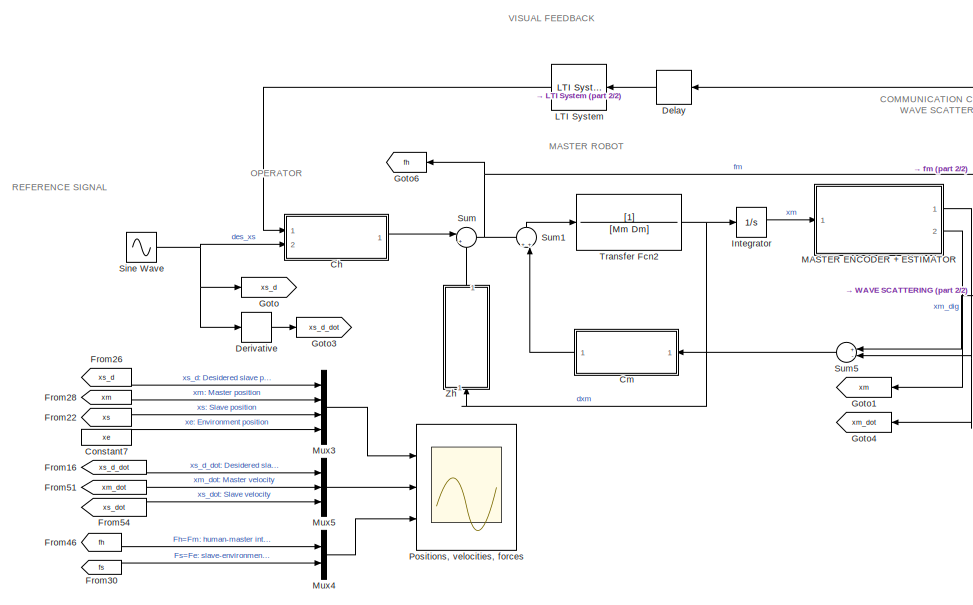
[diagram: root canvas - part 1/2, left side, full height]
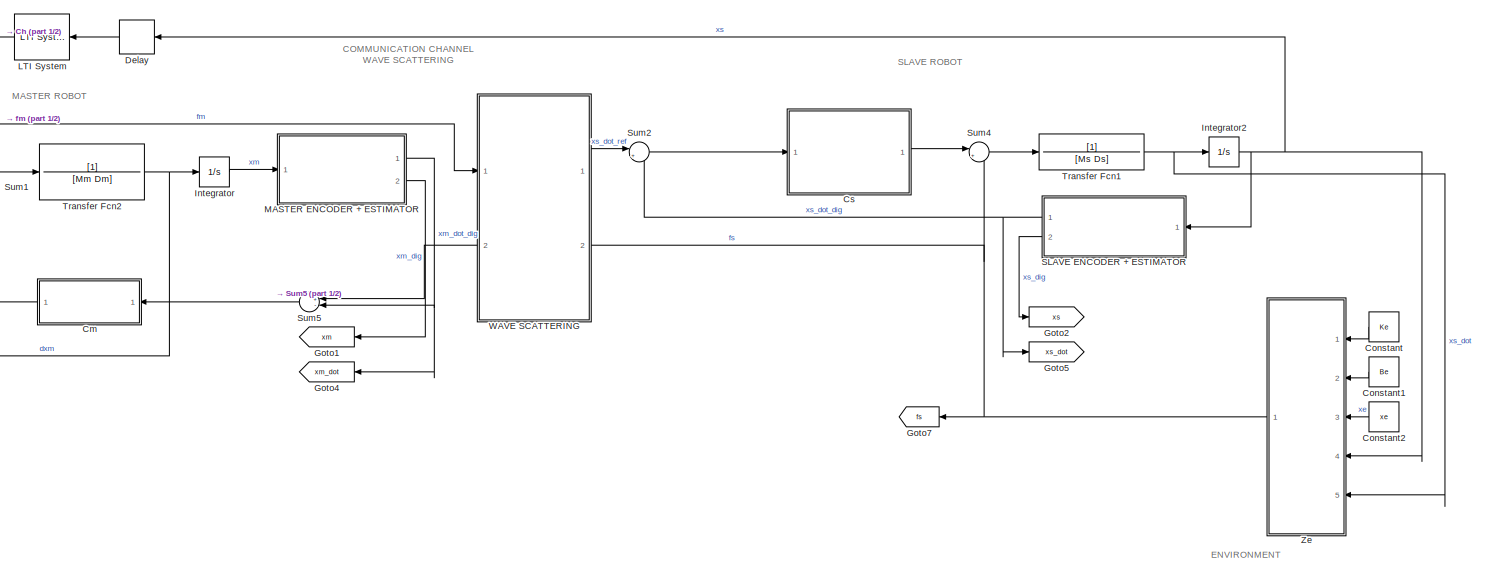
[diagram: root canvas - part 2/2, most of the canvas]
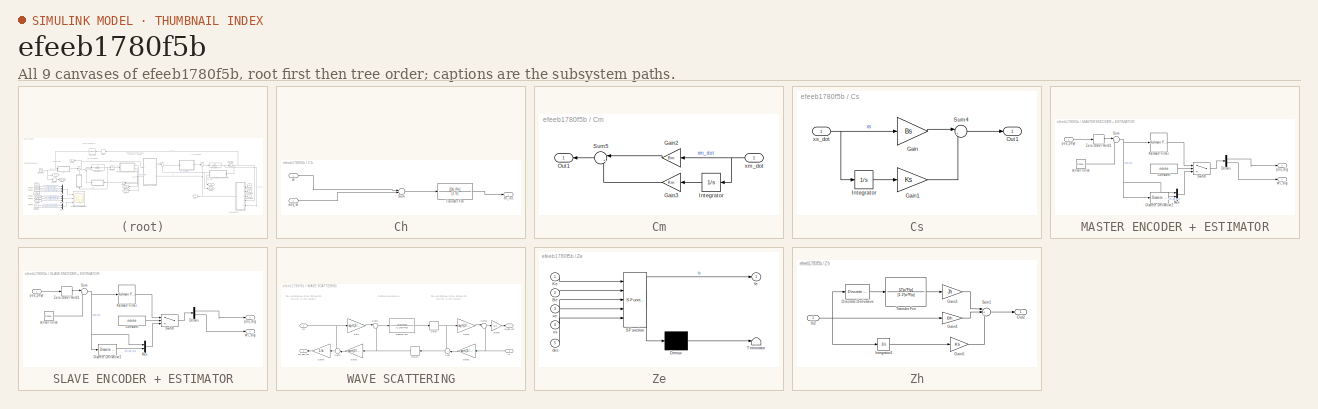
[diagram: thumbnail index - all 9 canvases of the model, root first then tree order]
MODEL slx_efeeb1780f5b
KIND model
CONFIG AbsTol = auto
CONFIG EnableMultiTasking = off
CONFIG FixedStep = auto
CONFIG MaxStep = auto
CONFIG MinStep = auto
CONFIG RelTol = 1e-3
CONFIG SampleTimeConstraint = Unconstrained
CONFIG SolverName = VariableStepAuto
CONFIG StartTime = 0.0
CONFIG StopTime = 10
BLOCK [SubSystem] Ch
  Ports = [2, 1]
  RequestExecContextInheritance = off
BLOCK [Sum] Ch/Sum
  Inputs = |-+
  Ports = [2, 1]
BLOCK [TransferFcn] Ch/Transfer Fcn
  Denominator = [1 0]
  Numerator = [Dh Ph]
BLOCK [Inport] Ch/des_xs
  Port = 2
BLOCK [Outport] Ch/fh_int
BLOCK [Inport] Ch/xs
BLOCK [SubSystem] Cm
  Ports = [1, 1]
  RequestExecContextInheritance = off
BLOCK [Gain] Cm/Gain2
  Gain = Bm
BLOCK [Gain] Cm/Gain3
  Gain = Km
BLOCK [Integrator] Cm/Integrator
  Ports = [1, 1]
BLOCK [Outport] Cm/Out1
BLOCK [Sum] Cm/Sum5
  Inputs = |++
  Ports = [2, 1]
BLOCK [Inport] Cm/xm_dot
BLOCK [Constant] Constant
  NameLocation = top
  Value = Ke
BLOCK [Constant] Constant1
  NameLocation = top
  Value = Be
BLOCK [Constant] Constant2
  NameLocation = top
  Value = xe
BLOCK [Constant] Constant7
  Value = xe
BLOCK [SubSystem] Cs
  Ports = [1, 1]
  RequestExecContextInheritance = off
BLOCK [Gain] Cs/Gain
  Gain = Bs
BLOCK [Gain] Cs/Gain1
  Gain = Ks
BLOCK [Integrator] Cs/Integrator
  Ports = [1, 1]
BLOCK [Outport] Cs/Out1
BLOCK [Sum] Cs/Sum4
  Inputs = |++
  Ports = [2, 1]
BLOCK [Inport] Cs/xs_dot
BLOCK [Delay] Delay
  DelayLength = d
  InputPortMap = u0
  Ports = [1, 1]
BLOCK [Derivative] Derivative
BLOCK [From] From16
  GotoTag = xs_d_dot
BLOCK [From] From22
  GotoTag = xs
BLOCK [From] From26
  GotoTag = xs_d
BLOCK [From] From28
  GotoTag = xm
BLOCK [From] From30
  GotoTag = fs
BLOCK [From] From46
  GotoTag = fh
BLOCK [From] From51
  GotoTag = xm_dot
BLOCK [From] From54
  GotoTag = xs_dot
BLOCK [Goto] Goto
  GotoTag = xs_d
BLOCK [Goto] Goto1
  GotoTag = xm
BLOCK [Goto] Goto2
  GotoTag = xs
BLOCK [Goto] Goto3
  GotoTag = xs_d_dot
BLOCK [Goto] Goto4
  GotoTag = xm_dot
BLOCK [Goto] Goto5
  GotoTag = xs_dot
BLOCK [Goto] Goto6
  GotoTag = fh
BLOCK [Goto] Goto7
  GotoTag = fs
BLOCK [Integrator] Integrator
  Ports = [1, 1]
BLOCK [Integrator] Integrator2
  Ports = [1, 1]
BLOCK [Reference] LTI System  REF=cstblocks/LTI System
  Ports = [1, 1]
  SourceBlock = cstblocks/LTI System
  SourceProductBaseCode = CT
  SourceType = LTI Block
BLOCK [SubSystem] MASTER ENCODER + ESTIMATOR
  Ports = [1, 2]
  RequestExecContextInheritance = off
BLOCK [Constant] MASTER ENCODER + ESTIMATOR/Constant
  Value = noise
BLOCK [Demux] MASTER ENCODER + ESTIMATOR/Demux
  Outputs = 2
  Ports = [1, 2]
BLOCK [Reference] MASTER ENCODER + ESTIMATOR/Discrete Derivative2  REF=simulink/Discrete/Discrete Derivative
  Ports = [1, 1]
  SourceBlock = simulink/Discrete/Discrete Derivative
  SourceProductBaseCode = SL
  SourceType = Discrete Derivative
BLOCK [Reference] MASTER ENCODER + ESTIMATOR/Kalman Filter  REF=ctrlSharedLib/Kalman Filter
  Ports = [1, 1]
  SourceBlock = ctrlSharedLib/Kalman Filter
  SourceProductBaseCode = CT,ID
  SourceType = ctrlKalmanFilter
BLOCK [Mux] MASTER ENCODER + ESTIMATOR/Mux
  DisplayOption = bar
  Inputs = 2
  Ports = [2, 1]
BLOCK [Sum] MASTER ENCODER + ESTIMATOR/Sum
  Inputs = |++
  Ports = [2, 1]
BLOCK [Switch] MASTER ENCODER + ESTIMATOR/Switch
  Criteria = u2 > Threshold
  InputSameDT = off
  SaturateOnIntegerOverflow = off
BLOCK [ZeroOrderHold] MASTER ENCODER + ESTIMATOR/Zero-Order Hold1
  SampleTime = Ts
BLOCK [Outport] MASTER ENCODER + ESTIMATOR/pos_dig
  Port = 2
BLOCK [Inport] MASTER ENCODER + ESTIMATOR/pos_phys
BLOCK [RandomNumber] MASTER ENCODER + ESTIMATOR/sensor noise
  NameLocation = top
  SampleTime = Ts
  Variance = noise
BLOCK [Outport] MASTER ENCODER + ESTIMATOR/vel_dig
BLOCK [Mux] Mux3
  DisplayOption = bar
  Ports = [4, 1]
BLOCK [Mux] Mux4
  DisplayOption = bar
  Inputs = 2
  Ports = [2, 1]
BLOCK [Mux] Mux5
  DisplayOption = bar
  Inputs = 3
  Ports = [3, 1]
BLOCK [Scope] Positions, velocities, forces
  Floating = off
  NumInputPorts = 3
  Ports = [3]
  ScopeSpecificationString = Simulink.scopes.TimeScopeBlockCfg('CurrentConfiguration', extmgr.ConfigurationSet(extmgr.Configuration('Core','General UI',true),extmgr.Configuration('Core','Source UI',true),extmgr.Configuration('Sources','WiredSimulink',true,'DataLogging',true,'SampleTime','Ts'),extmgr.Configuration('Visuals','Time Domain',true,'SerializedDisplays',{struct('MinYLimReal','-1.35516','MaxYLimReal','1.81724','YLabel...<+3672ch>
BLOCK [SubSystem] SLAVE ENCODER + ESTIMATOR
  Ports = [1, 2]
  RequestExecContextInheritance = off
BLOCK [Constant] SLAVE ENCODER + ESTIMATOR/Constant
  Value = noise
BLOCK [Demux] SLAVE ENCODER + ESTIMATOR/Demux
  Outputs = 2
  Ports = [1, 2]
BLOCK [Reference] SLAVE ENCODER + ESTIMATOR/Discrete Derivative2  REF=simulink/Discrete/Discrete Derivative
  Ports = [1, 1]
  SourceBlock = simulink/Discrete/Discrete Derivative
  SourceProductBaseCode = SL
  SourceType = Discrete Derivative
BLOCK [Reference] SLAVE ENCODER + ESTIMATOR/Kalman Filter  REF=ctrlSharedLib/Kalman Filter
  Ports = [1, 1]
  SourceBlock = ctrlSharedLib/Kalman Filter
  SourceProductBaseCode = CT,ID
  SourceType = ctrlKalmanFilter
BLOCK [Mux] SLAVE ENCODER + ESTIMATOR/Mux
  DisplayOption = bar
  Inputs = 2
  Ports = [2, 1]
BLOCK [Sum] SLAVE ENCODER + ESTIMATOR/Sum
  Inputs = |++
  Ports = [2, 1]
BLOCK [Switch] SLAVE ENCODER + ESTIMATOR/Switch
  Criteria = u2 > Threshold
  InputSameDT = off
  SaturateOnIntegerOverflow = off
BLOCK [ZeroOrderHold] SLAVE ENCODER + ESTIMATOR/Zero-Order Hold1
  SampleTime = Ts
BLOCK [Outport] SLAVE ENCODER + ESTIMATOR/pos_dig
  Port = 2
BLOCK [Inport] SLAVE ENCODER + ESTIMATOR/pos_phys
BLOCK [RandomNumber] SLAVE ENCODER + ESTIMATOR/sensor noise
  NameLocation = top
  SampleTime = Ts
  Variance = noise
BLOCK [Outport] SLAVE ENCODER + ESTIMATOR/vel_dig
BLOCK [Sin] Sine Wave
  Amplitude = A
  Frequency = Fc
  Ports = [0, 1]
  SampleTime = 0
BLOCK [Sum] Sum
  Inputs = |+-
  Ports = [2, 1]
BLOCK [Sum] Sum1
  Inputs = ++|
  NameLocation = right
  Ports = [2, 1]
BLOCK [Sum] Sum2
  Inputs = |+-
  Ports = [2, 1]
BLOCK [Sum] Sum4
  Inputs = |+-
  Ports = [2, 1]
BLOCK [Sum] Sum5
  Inputs = +-|
  Ports = [2, 1]
BLOCK [TransferFcn] Transfer Fcn1
  Denominator = [Ms Ds]
BLOCK [TransferFcn] Transfer Fcn2
  Denominator = [Mm Dm]
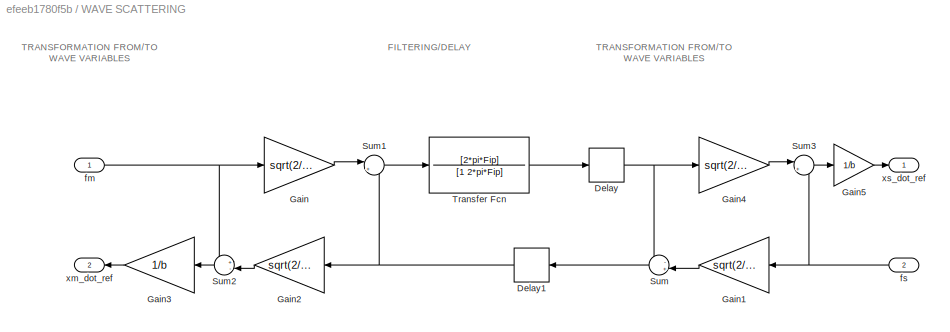
BLOCK [SubSystem] WAVE SCATTERING
  PortSchema = {"entries":[{"content":{"sides":[{"content":{"connectorIds":["In1","Out2"]},"type":"ConnectorPlacement.EquallySpacedRectSide","uuid":"b52b5263-ec77-4a5b-a444-fedf8384a1f4"},{"content":{"connectorIds":["Out1","In2"],"side":"RIGHT"},"type":"ConnectorPlacement.EquallySpacedRectSide","uuid":"29fc6d0d-53a2-4de5-b8fc-fdc6e2130f9a"},{"content":{"connectorIds":[],"side":"TOP"},"type":"ConnectorPlacement.E...<+397ch>
  Ports = [2, 2]
  RequestExecContextInheritance = off
BLOCK [Delay] WAVE SCATTERING/Delay
  DelayLength = d
  InputPortMap = u0
  Ports = [1, 1]
BLOCK [Delay] WAVE SCATTERING/Delay1
  DelayLength = d
  InputPortMap = u0
  Ports = [1, 1]
BLOCK [Gain] WAVE SCATTERING/Gain
  Gain = sqrt(2/b)
BLOCK [Gain] WAVE SCATTERING/Gain1
  Gain = sqrt(2/b)
BLOCK [Gain] WAVE SCATTERING/Gain2
  Gain = sqrt(2/b)
BLOCK [Gain] WAVE SCATTERING/Gain3
  Gain = 1/b
BLOCK [Gain] WAVE SCATTERING/Gain4
  Gain = sqrt(2/b)
BLOCK [Gain] WAVE SCATTERING/Gain5
  Gain = 1/b
BLOCK [Sum] WAVE SCATTERING/Sum
  Inputs = -+|
  Ports = [2, 1]
BLOCK [Sum] WAVE SCATTERING/Sum1
  Inputs = |+-
  Ports = [2, 1]
BLOCK [Sum] WAVE SCATTERING/Sum2
  Inputs = +-|
  Ports = [2, 1]
BLOCK [Sum] WAVE SCATTERING/Sum3
  Inputs = |+-
  Ports = [2, 1]
BLOCK [TransferFcn] WAVE SCATTERING/Transfer Fcn
  Denominator = [1 2*pi*Fip]
  Numerator = [2*pi*Fip]
BLOCK [Inport] WAVE SCATTERING/fm
BLOCK [Inport] WAVE SCATTERING/fs
  Port = 2
BLOCK [Outport] WAVE SCATTERING/xm_dot_ref
  Port = 2
BLOCK [Outport] WAVE SCATTERING/xs_dot_ref
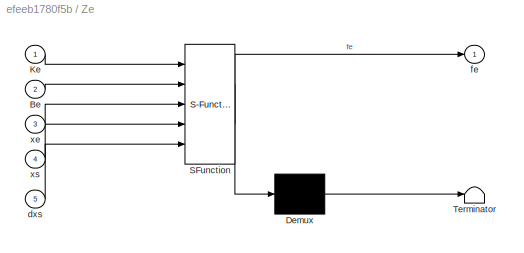
BLOCK [SubSystem] Ze
  ErrorFcn = Stateflow.Translate.translate
  NameLocation = top
  PermitHierarchicalResolution = ExplicitOnly
  Ports = [5, 1]
  RequestExecContextInheritance = off
  SFBlockType = MATLAB Function
  TreatAsAtomicUnit = on
BLOCK [Demux] Ze/ Demux 
  Outputs = 1
  Ports = [1, 1]
BLOCK [S-Function] Ze/ SFunction 
  EnableBusSupport = on
  FunctionName = sf_sfun
  PortCounts = [5 2]
  Ports = [5, 2]
  SFcnIsStateOwnerBlock = off
  SFunctionDeploymentMode = off
  Tag = Stateflow S-Function 2
BLOCK [Terminator] Ze/ Terminator 
BLOCK [Inport] Ze/Be
  Port = 2
BLOCK [Inport] Ze/Ke
BLOCK [Inport] Ze/dxs
  Port = 5
BLOCK [Outport] Ze/fe
BLOCK [Inport] Ze/xe
  Port = 3
BLOCK [Inport] Ze/xs
  Port = 4
BLOCK [SubSystem] Zh
  NameLocation = right
  Ports = [1, 1]
  RequestExecContextInheritance = off
BLOCK [Reference] Zh/Discrete Derivative  REF=simulink/Discrete/Discrete Derivative
  Ports = [1, 1]
  SourceBlock = simulink/Discrete/Discrete Derivative
  SourceProductBaseCode = SL
  SourceType = Discrete Derivative
BLOCK [Gain] Zh/Gain3
  Gain = Jh
BLOCK [Gain] Zh/Gain4
  Gain = Bh
BLOCK [Gain] Zh/Gain5
  Gain = Kh
BLOCK [Inport] Zh/In2
BLOCK [Integrator] Zh/Integrator2
  Ports = [1, 1]
BLOCK [Outport] Zh/Out2
BLOCK [Sum] Zh/Sum1
  Inputs = |+++
  Ports = [3, 1]
BLOCK [TransferFcn] Zh/Transfer Fcn
  Denominator = [1 2*pi*Flp]
  Numerator = [2*pi*Flp]
ANNOTATION (root): COMMUNICATION CHANNEL WAVE SCATTERING
ANNOTATION (root): ENVIRONMENT
ANNOTATION (root): MASTER ROBOT
ANNOTATION (root): OPERATOR
ANNOTATION (root): REFERENCE SIGNAL
ANNOTATION (root): SLAVE ROBOT
ANNOTATION (root): VISUAL FEEDBACK
ANNOTATION WAVE SCATTERING: TRANSFORMATION FROM/TO WAVE VARIABLES
ANNOTATION WAVE SCATTERING: FILTERING/DELAY
LINE Ch/Sum:1 -> Ch/Transfer Fcn:1
LINE Ch/Transfer Fcn:1 -> Ch/fh_int:1
LINE Ch/des_xs:1 -> Ch/Sum:2
LINE Ch/xs:1 -> Ch/Sum:1
LINE Ch:1 -> Sum:1
LINE Cm/Gain2:1 -> Cm/Sum5:1
LINE Cm/Gain3:1 -> Cm/Sum5:2
LINE Cm/Integrator:1 -> Cm/Gain3:1
LINE Cm/Sum5:1 -> Cm/Out1:1
NET Cm/xm_dot:1 -> Cm/Gain2:1, Cm/Integrator:1
LINE Cm:1 -> Sum1:2
LINE Constant1:1 -> Ze:2
LINE Constant2:1 -> Ze:3
LINE Constant7:1 -> Mux3:4
LINE Constant:1 -> Ze:1
LINE Cs/Gain1:1 -> Cs/Sum4:2
LINE Cs/Gain:1 -> Cs/Sum4:1
LINE Cs/Integrator:1 -> Cs/Gain1:1
LINE Cs/Sum4:1 -> Cs/Out1:1
NET Cs/xs_dot:1 -> Cs/Gain:1, Cs/Integrator:1
LINE Cs:1 -> Sum4:1
LINE Delay:1 -> LTI System:1
LINE Derivative:1 -> Goto3:1
LINE From16:1 -> Mux5:1
LINE From22:1 -> Mux3:3
LINE From26:1 -> Mux3:1
LINE From28:1 -> Mux3:2
LINE From30:1 -> Mux4:2
LINE From46:1 -> Mux4:1
LINE From51:1 -> Mux5:2
LINE From54:1 -> Mux5:3
NET Integrator2:1 -> Delay:1, SLAVE ENCODER + ESTIMATOR:1, Ze:4
LINE Integrator:1 -> MASTER ENCODER + ESTIMATOR:1
LINE LTI System:1 -> Ch:1
LINE MASTER ENCODER + ESTIMATOR/Constant:1 -> MASTER ENCODER + ESTIMATOR/Switch:2
LINE MASTER ENCODER + ESTIMATOR/Demux:1 -> MASTER ENCODER + ESTIMATOR/pos_dig:1
LINE MASTER ENCODER + ESTIMATOR/Demux:2 -> MASTER ENCODER + ESTIMATOR/vel_dig:1
LINE MASTER ENCODER + ESTIMATOR/Discrete Derivative2:1 -> MASTER ENCODER + ESTIMATOR/Mux:2
LINE MASTER ENCODER + ESTIMATOR/Kalman Filter:1 -> MASTER ENCODER + ESTIMATOR/Switch:1
LINE MASTER ENCODER + ESTIMATOR/Mux:1 -> MASTER ENCODER + ESTIMATOR/Switch:3
NET MASTER ENCODER + ESTIMATOR/Sum:1 -> MASTER ENCODER + ESTIMATOR/Discrete Derivative2:1, MASTER ENCODER + ESTIMATOR/Kalman Filter:1, MASTER ENCODER + ESTIMATOR/Mux:1
LINE MASTER ENCODER + ESTIMATOR/Switch:1 -> MASTER ENCODER + ESTIMATOR/Demux:1
LINE MASTER ENCODER + ESTIMATOR/Zero-Order Hold1:1 -> MASTER ENCODER + ESTIMATOR/Sum:1
LINE MASTER ENCODER + ESTIMATOR/pos_phys:1 -> MASTER ENCODER + ESTIMATOR/Zero-Order Hold1:1
LINE MASTER ENCODER + ESTIMATOR/sensor noise:1 -> MASTER ENCODER + ESTIMATOR/Sum:2
NET MASTER ENCODER + ESTIMATOR:1 -> Goto4:1, Sum5:2
LINE MASTER ENCODER + ESTIMATOR:2 -> Goto1:1
LINE Mux3:1 -> Positions, velocities, forces:1
LINE Mux4:1 -> Positions, velocities, forces:3
LINE Mux5:1 -> Positions, velocities, forces:2
LINE SLAVE ENCODER + ESTIMATOR/Constant:1 -> SLAVE ENCODER + ESTIMATOR/Switch:2
LINE SLAVE ENCODER + ESTIMATOR/Demux:1 -> SLAVE ENCODER + ESTIMATOR/pos_dig:1
LINE SLAVE ENCODER + ESTIMATOR/Demux:2 -> SLAVE ENCODER + ESTIMATOR/vel_dig:1
LINE SLAVE ENCODER + ESTIMATOR/Discrete Derivative2:1 -> SLAVE ENCODER + ESTIMATOR/Mux:2
LINE SLAVE ENCODER + ESTIMATOR/Kalman Filter:1 -> SLAVE ENCODER + ESTIMATOR/Switch:1
LINE SLAVE ENCODER + ESTIMATOR/Mux:1 -> SLAVE ENCODER + ESTIMATOR/Switch:3
NET SLAVE ENCODER + ESTIMATOR/Sum:1 -> SLAVE ENCODER + ESTIMATOR/Discrete Derivative2:1, SLAVE ENCODER + ESTIMATOR/Kalman Filter:1, SLAVE ENCODER + ESTIMATOR/Mux:1
LINE SLAVE ENCODER + ESTIMATOR/Switch:1 -> SLAVE ENCODER + ESTIMATOR/Demux:1
LINE SLAVE ENCODER + ESTIMATOR/Zero-Order Hold1:1 -> SLAVE ENCODER + ESTIMATOR/Sum:1
LINE SLAVE ENCODER + ESTIMATOR/pos_phys:1 -> SLAVE ENCODER + ESTIMATOR/Zero-Order Hold1:1
LINE SLAVE ENCODER + ESTIMATOR/sensor noise:1 -> SLAVE ENCODER + ESTIMATOR/Sum:2
NET SLAVE ENCODER + ESTIMATOR:1 -> Goto5:1, Sum2:2
LINE SLAVE ENCODER + ESTIMATOR:2 -> Goto2:1
NET Sine Wave:1 -> Ch:2, Derivative:1, Goto:1
LINE Sum1:1 -> Transfer Fcn2:1
LINE Sum2:1 -> Cs:1
LINE Sum4:1 -> Transfer Fcn1:1
LINE Sum5:1 -> Cm:1
NET Sum:1 -> Goto6:1, Sum1:1, WAVE SCATTERING:1
NET Transfer Fcn1:1 -> Integrator2:1, Ze:5
NET Transfer Fcn2:1 -> Integrator:1, Zh:1
NET WAVE SCATTERING/Delay1:1 -> WAVE SCATTERING/Gain2:1, WAVE SCATTERING/Sum1:2
NET WAVE SCATTERING/Delay:1 -> WAVE SCATTERING/Gain4:1, WAVE SCATTERING/Sum:1
LINE WAVE SCATTERING/Gain1:1 -> WAVE SCATTERING/Sum:2
LINE WAVE SCATTERING/Gain2:1 -> WAVE SCATTERING/Sum2:2
LINE WAVE SCATTERING/Gain3:1 -> WAVE SCATTERING/xm_dot_ref:1
LINE WAVE SCATTERING/Gain4:1 -> WAVE SCATTERING/Sum3:1
LINE WAVE SCATTERING/Gain5:1 -> WAVE SCATTERING/xs_dot_ref:1
LINE WAVE SCATTERING/Gain:1 -> WAVE SCATTERING/Sum1:1
LINE WAVE SCATTERING/Sum1:1 -> WAVE SCATTERING/Transfer Fcn:1
LINE WAVE SCATTERING/Sum2:1 -> WAVE SCATTERING/Gain3:1
LINE WAVE SCATTERING/Sum3:1 -> WAVE SCATTERING/Gain5:1
LINE WAVE SCATTERING/Sum:1 -> WAVE SCATTERING/Delay1:1
LINE WAVE SCATTERING/Transfer Fcn:1 -> WAVE SCATTERING/Delay:1
NET WAVE SCATTERING/fm:1 -> WAVE SCATTERING/Gain:1, WAVE SCATTERING/Sum2:1
NET WAVE SCATTERING/fs:1 -> WAVE SCATTERING/Gain1:1, WAVE SCATTERING/Sum3:2
LINE WAVE SCATTERING:1 -> Sum2:1
LINE WAVE SCATTERING:2 -> Sum5:1
NET Ze:1 -> Goto7:1, Sum4:2, WAVE SCATTERING:2
LINE Zh/Discrete Derivative:1 -> Zh/Transfer Fcn:1
LINE Zh/Gain3:1 -> Zh/Sum1:1
LINE Zh/Gain4:1 -> Zh/Sum1:2
LINE Zh/Gain5:1 -> Zh/Sum1:3
NET Zh/In2:1 -> Zh/Discrete Derivative:1, Zh/Gain4:1, Zh/Integrator2:1
LINE Zh/Integrator2:1 -> Zh/Gain5:1
LINE Zh/Sum1:1 -> Zh/Out2:1
LINE Zh/Transfer Fcn:1 -> Zh/Gain3:1
LINE Zh:1 -> Sum:2
note: NET lines group one-source signal fan-out (src -> all destinations, sorted); 1:1 wires keep LINE
CHART Ze states=1 transitions=1
  STATE_LABEL 'eML_blk_kernel()'
  STATE_LABEL 'SCRIPT:\nfunction fe = env(Ke, Be, xe, xs, dxs)\n    if xs > xe\n        fe = Ke*(xs-xe)+Be*max(dxs, 0);\n    else\n        fe = 0;\n    end\n\n'
CHART  states=0 transitions=0
